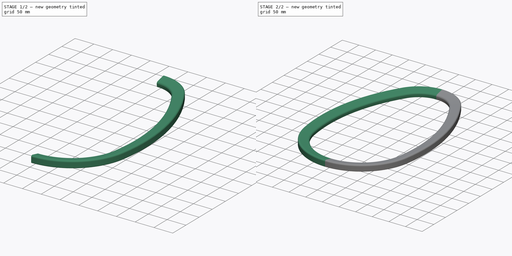
[diagram: build sequence overview — one tinted view per stage of 2, left to right]
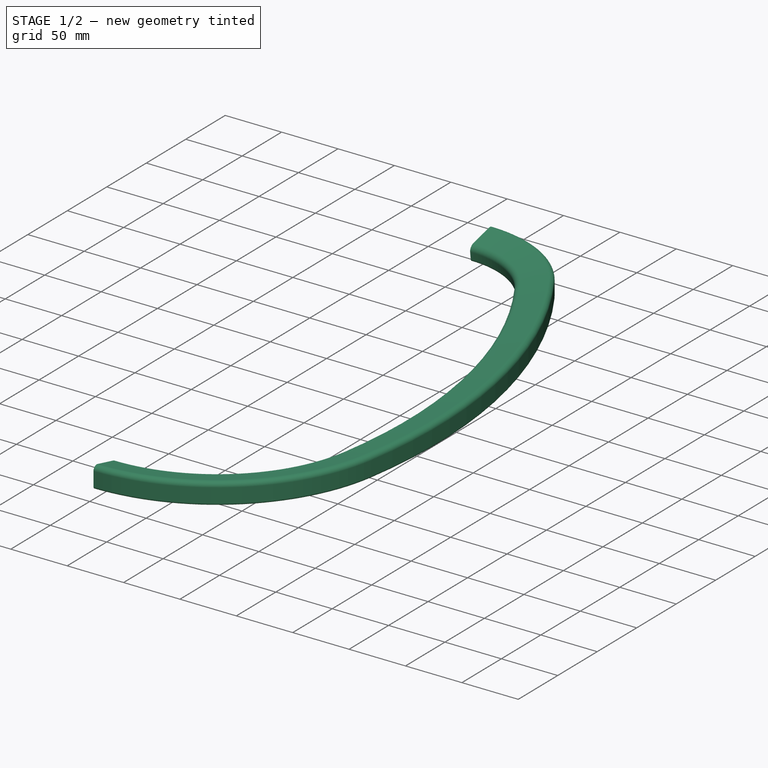
[diagram: stage 1 of 2 — iso view after this stage's code; geometry added in this stage tinted green]
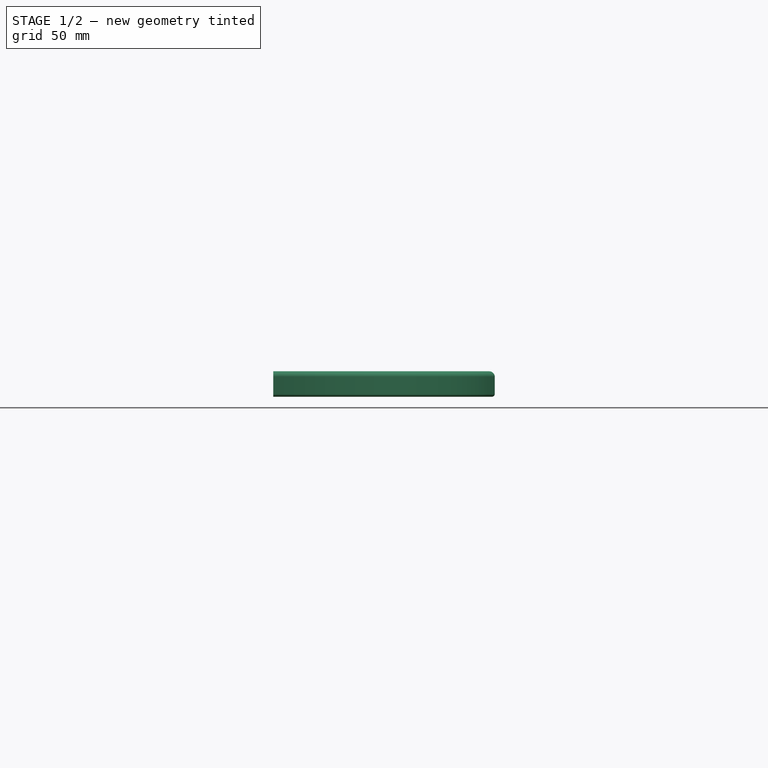
[diagram: stage 1 of 2 — front view after this stage's code; geometry added in this stage tinted green]
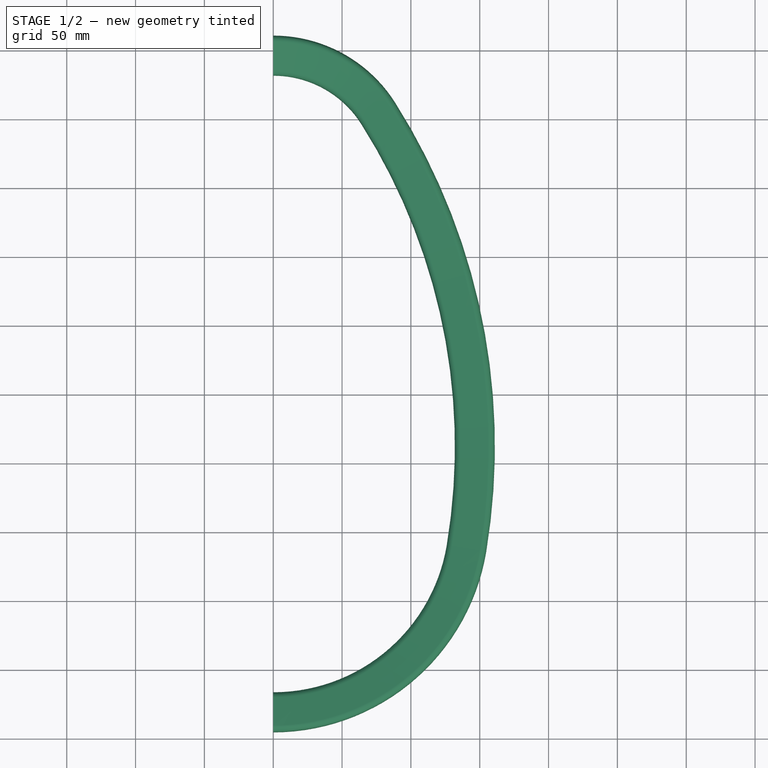
[diagram: stage 1 of 2 — top view after this stage's code; geometry added in this stage tinted green]
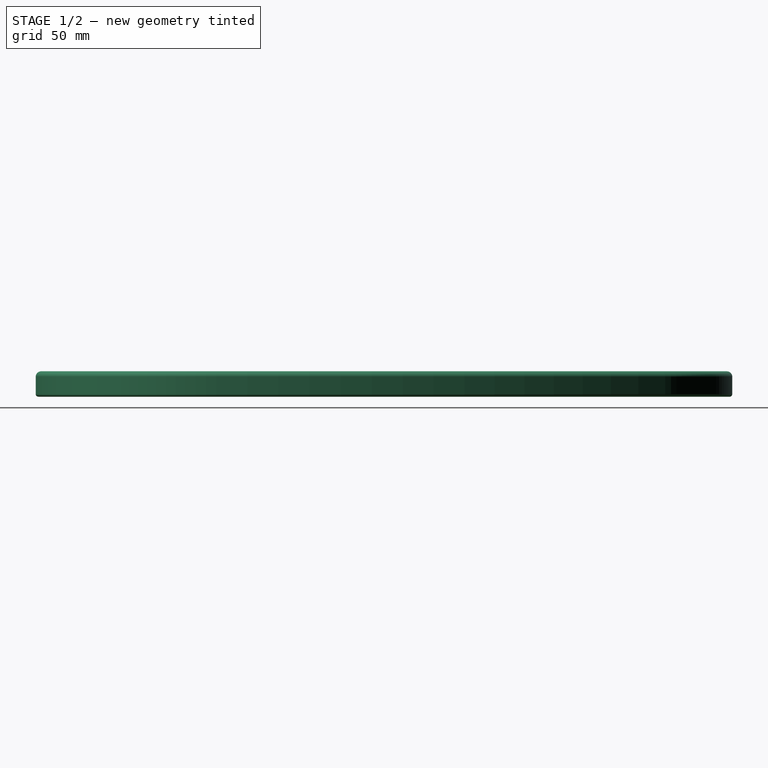
[diagram: stage 1 of 2 — right view after this stage's code; geometry added in this stage tinted green]
FCSTD DOCUMENT  (FreeCAD 0.19R)
Label: Seat-1
License: All rights reserved
LicenseURL: http://en.wikipedia.org/wiki/All_rights_reserved
objects: Sketcher::SketchObject×2, PartDesign::AdditivePipe×1, PartDesign::Mirrored×1, PartDesign::Body×1
note: 6 computed .brp shape members not serialized (recipe doc carries the construction recipe); baked Part::Feature solids carry a one-line shape summary decoded from their .brp

FEATURE [Sketcher::SketchObject] Sketch
  FullyConstrained = false
  MapMode = 5
  Placement = pos=(0,0,0) rot=(0.57735,0.57735,0.57735;2.0944rad)
  Support = -> [YZ_Plane]
  sketch-geometry (8):
    g0: LineSegment StartX=184.496 StartY=-6.88651 StartZ=0 EndX=208.776 EndY=-6.88651 EndZ=0
    g1: LineSegment StartX=210.776 StartY=-4.88651 StartZ=0 EndX=210.776 EndY=7.56349 EndZ=0
    g2: ArcOfCircle CenterX=206.776 CenterY=7.56349 CenterZ=0 NormalX=0 NormalY=0 NormalZ=1 AngleXU=0 Radius=4 StartAngle=0 EndAngle=1.80874
    g3: LineSegment StartX=205.833 StartY=11.4508 StartZ=0 EndX=185.774 EndY=6.58582 EndZ=0
    g4: ArcOfCircle CenterX=187.021 CenterY=1.44487 CenterZ=0 NormalX=0 NormalY=0 NormalZ=1 AngleXU=0 Radius=5.29 StartAngle=1.80874 EndAngle=3.26571
    g5: LineSegment StartX=181.772 StartY=0.789963 StartZ=0 EndX=182.511 EndY=-5.13411 EndZ=0
    g6: ArcOfCircle CenterX=208.776 CenterY=-4.88651 CenterZ=0 NormalX=0 NormalY=0 NormalZ=1 AngleXU=0 Radius=2 StartAngle=4.71239 EndAngle=6.28319
    g7: ArcOfCircle CenterX=184.496 CenterY=-4.88651 CenterZ=0 NormalX=0 NormalY=0 NormalZ=1 AngleXU=0 Radius=2 StartAngle=3.26571 EndAngle=4.71239
  constraints (18):
    c: Vertical(g1)
    c: Tangent(g1,g2) = -1.5708
    c: Tangent(g2,g3) = -1.5708
    c: Tangent(g3,g4) = -1.5708
    c: Tangent(g4,g5) = -1.5708
    c: Tangent(g0,g6) = -1.5708
    c: Tangent(g1,g6) = -1.5708
    c: Tangent(g0,g7) = -1.5708
    c: Tangent(g5,g7) = -1.5708
    c: Radius(g4) = 5.29
    c: Radius(g2) = 4
    c: Equal(g6,g7)
    c: Horizontal(g0)
    c: Radius(g7) = 2
    c: Distance(g3) = 20.64
    c: DistanceY(g1,g1) = 12.45
    c: Distance(g5) = 5.97
    c: DistanceX(g0,g0) = 24.28
FEATURE [Sketcher::SketchObject] Sketch001
  FullyConstrained = false
  MapMode = 5
  Support = -> [XY_Plane]
  sketch-geometry (3):
    g0: ArcOfCircle CenterX=0 CenterY=105.937 CenterZ=0 NormalX=0 NormalY=0 NormalZ=1 AngleXU=0 Radius=92.8249 StartAngle=0.564573 EndAngle=1.5708
    g1: ArcOfCircle CenterX=0 CenterY=-138.431 CenterZ=0 NormalX=0 NormalY=0 NormalZ=1 AngleXU=0 Radius=144.805 StartAngle=4.71239 EndAngle=6.11875
    g2: ArcOfCircle CenterX=-305.737 CenterY=-87.6981 CenterZ=0 NormalX=0 NormalY=0 NormalZ=1 AngleXU=0 Radius=454.722 StartAngle=6.11875 EndAngle=6.84776
  constraints (6):
    c: PointOnObject(g0,g-2)
    c: PointOnObject(g0,g-2)
    c: PointOnObject(g1,g-2)
    c: PointOnObject(g1,g-2)
    c: Tangent(g2,g1) = -1.5708
    c: Tangent(g2,g0) = -1.5708
FEATURE [PartDesign::AdditivePipe] AdditivePipe
  AuxilleryCurvelinear = true
  AuxillerySpineTangent = false
  Binormal = (0,0,0)
  Mode = 0
  Placement = pos=(0,0,0) rot=(0.57735,0.57735,0.57735;2.0944rad)
  Profile = -> Sketch
  Spine = -> Sketch001
  SpineTangent = false
  Transformation = 0
  Transition = 0
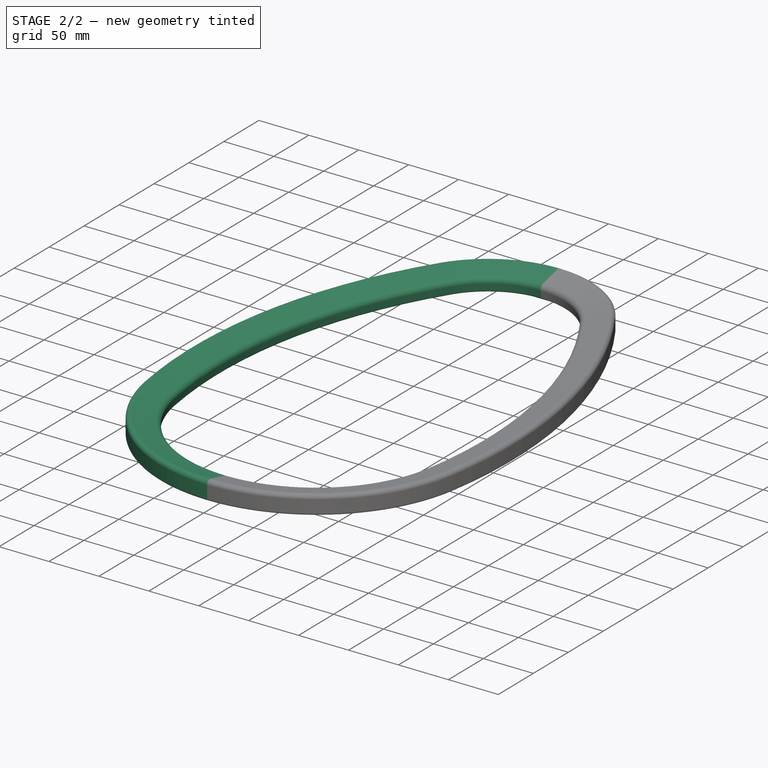
[diagram: stage 2 of 2 — iso view after this stage's code; geometry added in this stage tinted green]
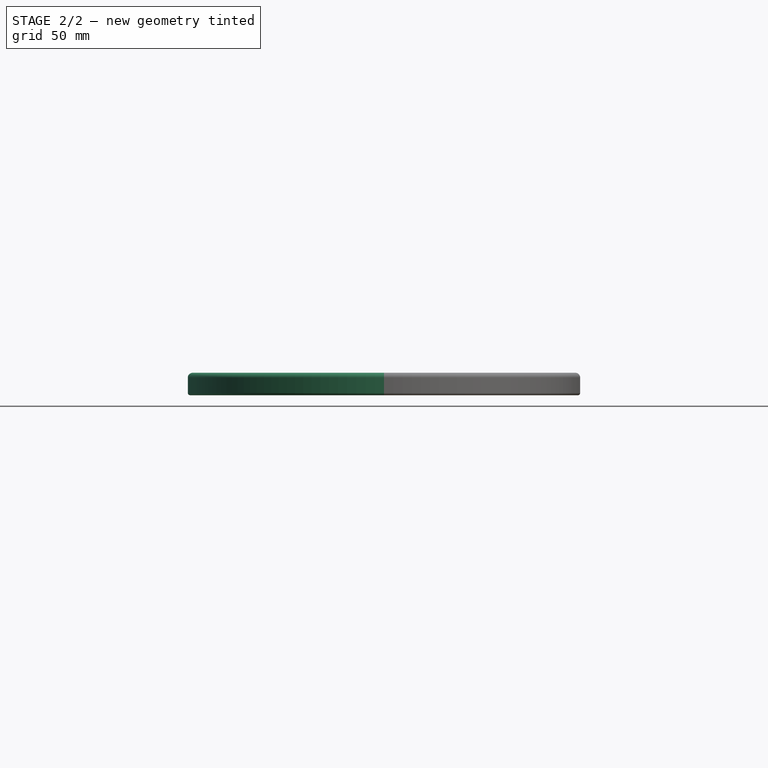
[diagram: stage 2 of 2 — front view after this stage's code; geometry added in this stage tinted green]
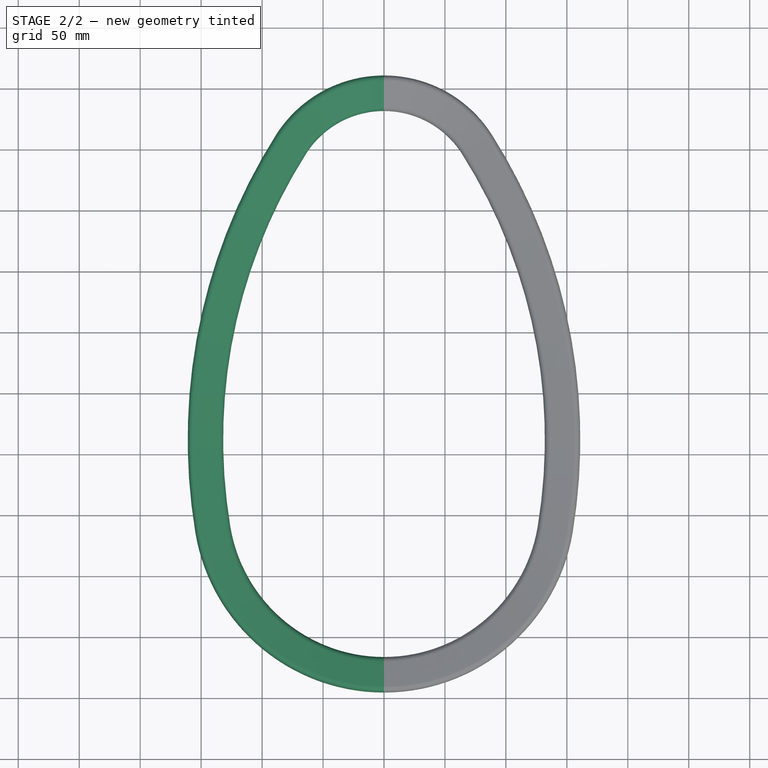
[diagram: stage 2 of 2 — top view after this stage's code; geometry added in this stage tinted green]
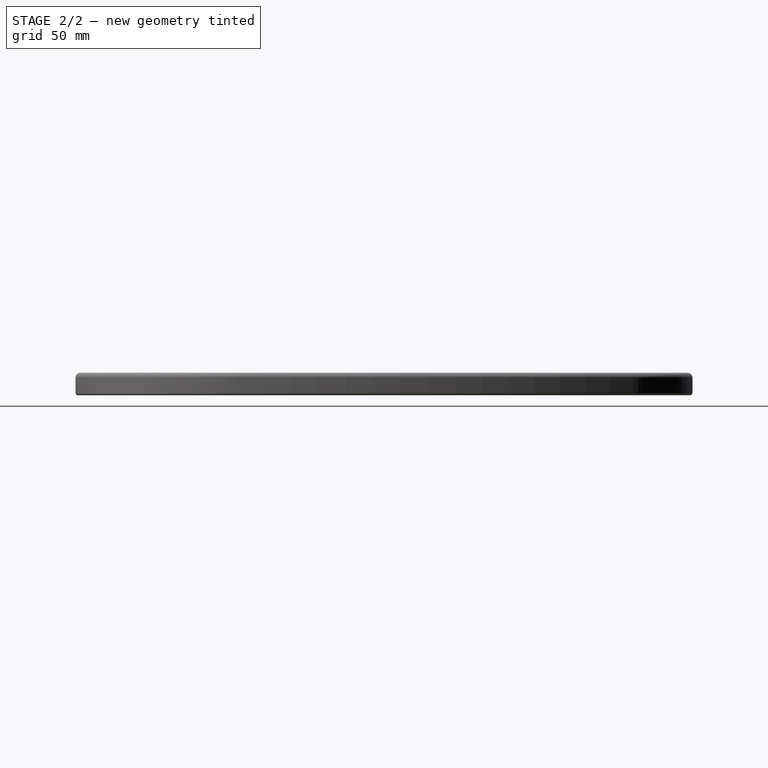
[diagram: stage 2 of 2 — right view after this stage's code; geometry added in this stage tinted green]
FEATURE [PartDesign::Mirrored] Mirrored
  BaseFeature = -> AdditivePipe
  MirrorPlane = -> YZ_Plane
  Originals = -> [AdditivePipe]
  Placement = pos=(0,0,0) rot=(0.57735,0.57735,0.57735;2.0944rad)
FEATURE [PartDesign::Body] Body
  Group = -> [Sketch,Sketch001,AdditivePipe,Mirrored]
  Origin = -> Origin
  Tip = -> Mirrored
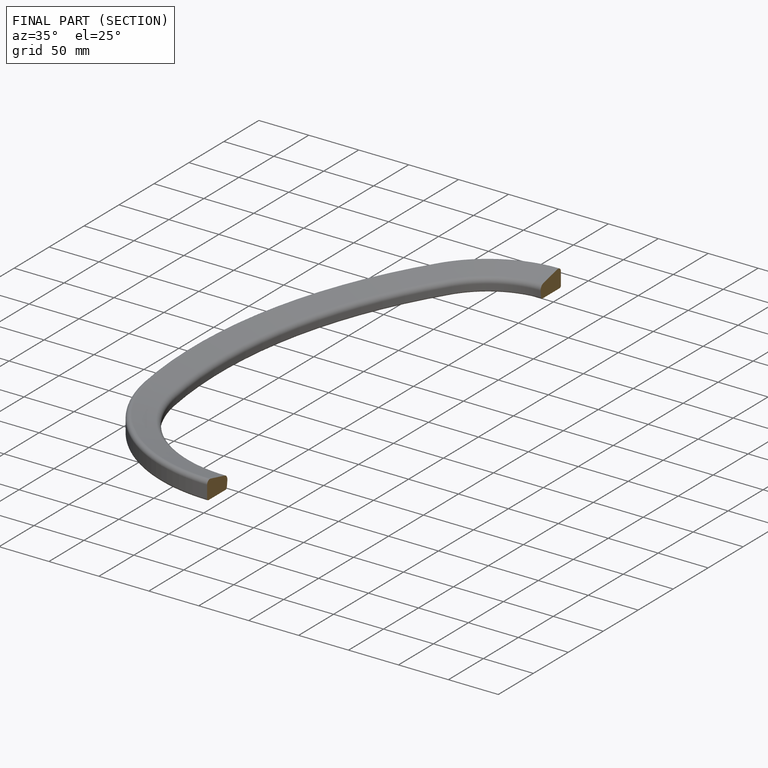
[diagram: finished part — half-section view (interior)]
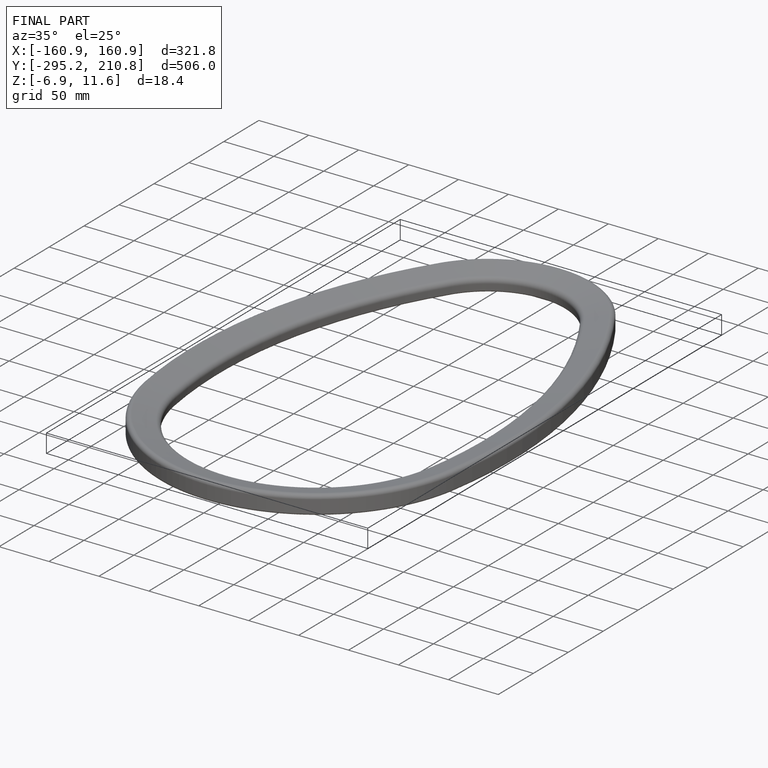
[diagram: finished part — iso view with bounding-box wireframe]
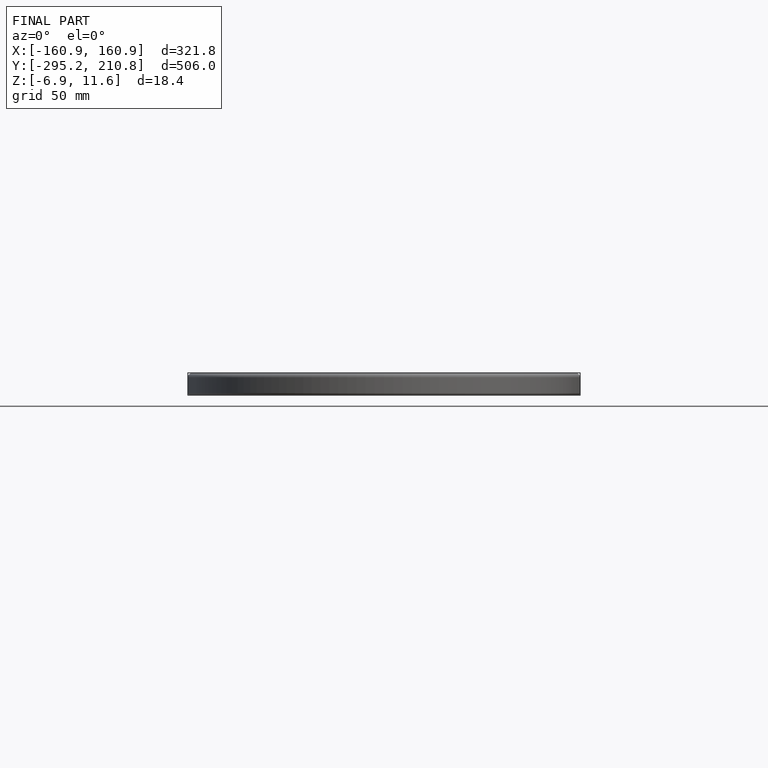
[diagram: finished part — front view with bounding-box wireframe]
